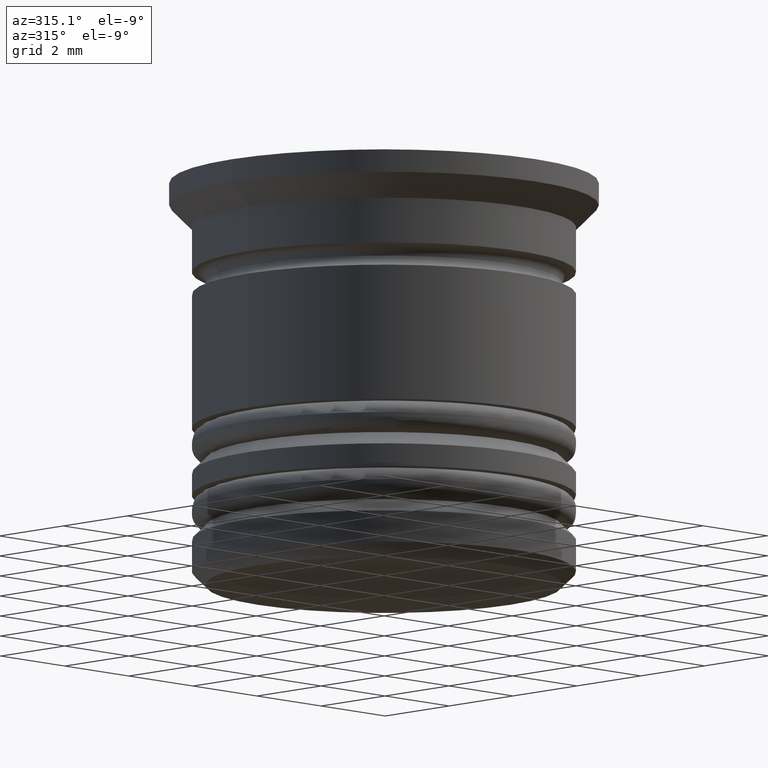
[diagram: clean part render]
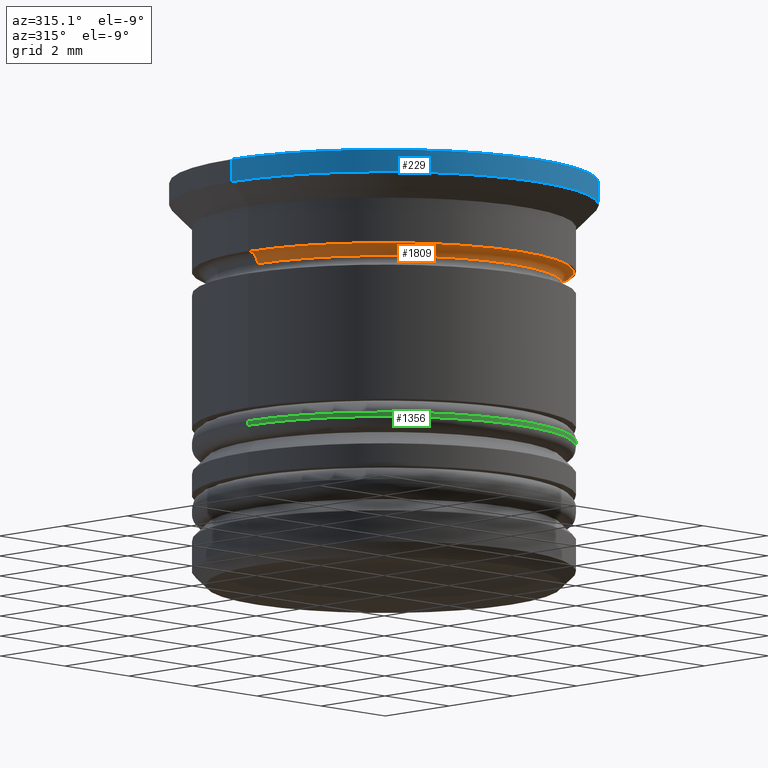
[diagram: same view with three faces highlighted in distinct colors, each labeled with its STEP entity id]
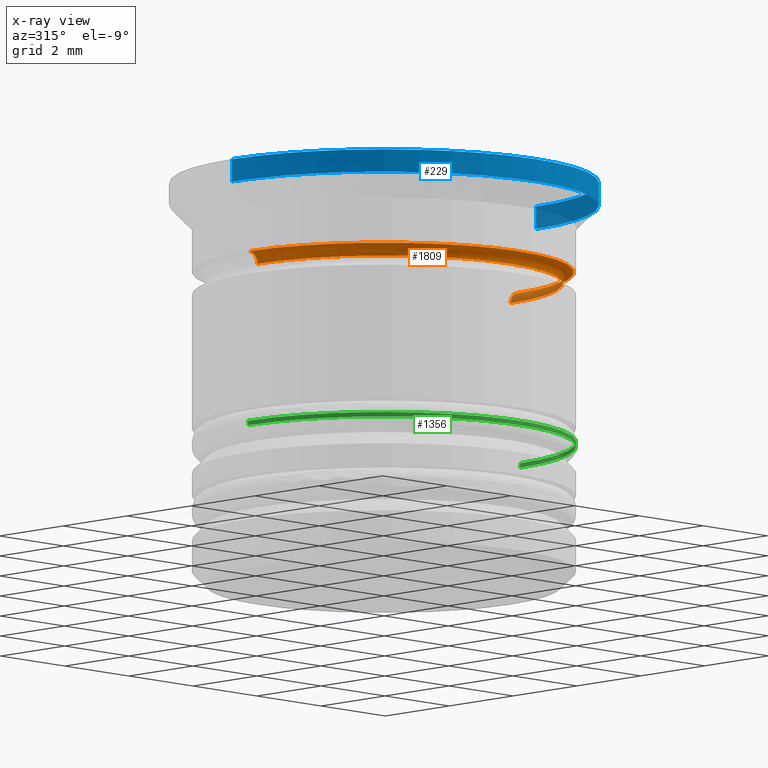
[diagram: x-ray of the same camera — body ghosted, the three highlighted faces saturated]
A machine part, auxiliary view with three faces highlighted in distinct colors.
The next image is the same camera in x-ray (body ghosted, the three faces saturated) — at least one of them is partly hidden behind the body in this view.
Their STEP definitions:

[orange] entity #1809 — the highlighted toroidal blend (fillet) surface has major radius 4.2 mm and minor (blend) radius 0.25 mm.
#16 = EDGE_CURVE ( 'NONE', #1343, #835, #308, .T. ) ;
#79 = CARTESIAN_POINT ( 'NONE',  ( 0.000000000000000000, 0.000000000000000000, -2.250000000000000000 ) ) ;
#136 = CARTESIAN_POINT ( 'NONE',  ( 4.200000000000000178, 0.000000000000000000, -2.000000000000000444 ) ) ;
#142 = DIRECTION ( 'NONE',  ( 1.000000000000000000, 0.000000000000000000, 0.000000000000000000 ) ) ;
#157 = CARTESIAN_POINT ( 'NONE',  ( -4.200000000000000178, 5.143516556418882928E-16, -2.250000000000000000 ) ) ;
#308 = CIRCLE ( 'NONE', #1465, 3.950000000000000178 ) ;
#401 = CARTESIAN_POINT ( 'NONE',  ( -3.950000000000000178, 4.837354856632045057E-16, -2.250000000000000000 ) ) ;
#415 = AXIS2_PLACEMENT_3D ( 'NONE', #1223, #1364, #142 ) ;
#516 = ORIENTED_EDGE ( 'NONE', *, *, #16, .T. ) ;
#555 = VERTEX_POINT ( 'NONE', #1448 ) ;
#640 = EDGE_LOOP ( 'NONE', ( #1789, #516, #1071, #1949 ) ) ;
#719 = CIRCLE ( 'NONE', #1571, 4.200000000000000178 ) ;
#723 = DIRECTION ( 'NONE',  ( 0.000000000000000000, 0.000000000000000000, -1.000000000000000000 ) ) ;
#734 = DIRECTION ( 'NONE',  ( -0.000000000000000000, -0.000000000000000000, 1.000000000000000000 ) ) ;
#774 = VERTEX_POINT ( 'NONE', #136 ) ;
#786 = DIRECTION ( 'NONE',  ( 1.224646799147353207E-16, 1.000000000000000000, 0.000000000000000000 ) ) ;
#835 = VERTEX_POINT ( 'NONE', #1370 ) ;
#879 = DIRECTION ( 'NONE',  ( 1.000000000000000000, 0.000000000000000000, 0.000000000000000000 ) ) ;
#906 = DIRECTION ( 'NONE',  ( 1.000000000000000000, 0.000000000000000000, 0.000000000000000000 ) ) ;
#913 = CIRCLE ( 'NONE', #1500, 0.2499999999999993616 ) ;
#972 = DIRECTION ( 'NONE',  ( -1.000000000000000000, 1.224646799147353700E-16, 0.000000000000000000 ) ) ;
#1071 = ORIENTED_EDGE ( 'NONE', *, *, #1288, .F. ) ;
#1212 = DIRECTION ( 'NONE',  ( -0.000000000000000000, -0.000000000000000000, 1.000000000000000000 ) ) ;
#1223 = CARTESIAN_POINT ( 'NONE',  ( 0.000000000000000000, 0.000000000000000000, -2.250000000000000000 ) ) ;
#1232 = FACE_OUTER_BOUND ( 'NONE', #640, .T. ) ;
#1288 = EDGE_CURVE ( 'NONE', #774, #835, #1305, .T. ) ;
#1305 = CIRCLE ( 'NONE', #1966, 0.2499999999999993616 ) ;
#1308 = TOROIDAL_SURFACE ( 'NONE', #415, 4.200000000000000178, 0.2499999999999993616 ) ;
#1343 = VERTEX_POINT ( 'NONE', #401 ) ;
#1364 = DIRECTION ( 'NONE',  ( -0.000000000000000000, -0.000000000000000000, 1.000000000000000000 ) ) ;
#1368 = EDGE_CURVE ( 'NONE', #555, #774, #719, .T. ) ;
#1370 = CARTESIAN_POINT ( 'NONE',  ( 3.950000000000000178, 0.000000000000000000, -2.250000000000000000 ) ) ;
#1448 = CARTESIAN_POINT ( 'NONE',  ( -4.200000000000000178, 5.143516556418882928E-16, -2.000000000000000444 ) ) ;
#1465 = AXIS2_PLACEMENT_3D ( 'NONE', #79, #734, #879 ) ;
#1500 = AXIS2_PLACEMENT_3D ( 'NONE', #157, #786, #972 ) ;
#1571 = AXIS2_PLACEMENT_3D ( 'NONE', #1996, #1212, #906 ) ;
#1677 = CARTESIAN_POINT ( 'NONE',  ( 4.200000000000000178, 0.000000000000000000, -2.250000000000000000 ) ) ;
#1789 = ORIENTED_EDGE ( 'NONE', *, *, #1957, .T. ) ;
#1809 = ADVANCED_FACE ( 'NONE', ( #1232 ), #1308, .F. ) ;
#1949 = ORIENTED_EDGE ( 'NONE', *, *, #1368, .F. ) ;
#1957 = EDGE_CURVE ( 'NONE', #555, #1343, #913, .T. ) ;
#1966 = AXIS2_PLACEMENT_3D ( 'NONE', #1677, #1984, #723 ) ;
#1984 = DIRECTION ( 'NONE',  ( 0.000000000000000000, -1.000000000000000000, 0.000000000000000000 ) ) ;
#1996 = CARTESIAN_POINT ( 'NONE',  ( 0.000000000000000000, 0.000000000000000000, -2.000000000000000444 ) ) ;

[blue] entity #229 — the highlighted cylindrical surface (partial cylindrical patch) has radius 4.75 mm, axis along (-0, -0, 1).
#69 = LINE ( 'NONE', #391, #980 ) ;
#152 = CARTESIAN_POINT ( 'NONE',  ( 0.000000000000000000, 0.000000000000000000, 0.000000000000000000 ) ) ;
#187 = AXIS2_PLACEMENT_3D ( 'NONE', #1997, #1503, #875 ) ;
#229 = ADVANCED_FACE ( 'NONE', ( #513 ), #1342, .T. ) ;
#247 = VECTOR ( 'NONE', #1564, 1000.000000000000000 ) ;
#300 = ORIENTED_EDGE ( 'NONE', *, *, #634, .F. ) ;
#340 = VERTEX_POINT ( 'NONE', #1374 ) ;
#391 = CARTESIAN_POINT ( 'NONE',  ( -4.750000000000000000, 5.817072295949927426E-16, 0.000000000000000000 ) ) ;
#396 = EDGE_CURVE ( 'NONE', #523, #1285, #409, .T. ) ;
#409 = CIRCLE ( 'NONE', #1931, 4.750000000000000000 ) ;
#465 = DIRECTION ( 'NONE',  ( 1.000000000000000000, 0.000000000000000000, 0.000000000000000000 ) ) ;
#513 = FACE_OUTER_BOUND ( 'NONE', #1746, .T. ) ;
#523 = VERTEX_POINT ( 'NONE', #1151 ) ;
#564 = EDGE_CURVE ( 'NONE', #340, #655, #1328, .T. ) ;
#634 = EDGE_CURVE ( 'NONE', #340, #523, #69, .T. ) ;
#655 = VERTEX_POINT ( 'NONE', #1982 ) ;
#721 = DIRECTION ( 'NONE',  ( -0.000000000000000000, -0.000000000000000000, 1.000000000000000000 ) ) ;
#742 = ORIENTED_EDGE ( 'NONE', *, *, #396, .F. ) ;
#794 = LINE ( 'NONE', #1417, #247 ) ;
#875 = DIRECTION ( 'NONE',  ( 1.000000000000000000, 0.000000000000000000, 0.000000000000000000 ) ) ;
#882 = AXIS2_PLACEMENT_3D ( 'NONE', #1130, #1767, #981 ) ;
#980 = VECTOR ( 'NONE', #721, 1000.000000000000000 ) ;
#981 = DIRECTION ( 'NONE',  ( -1.000000000000000000, 0.000000000000000000, 0.000000000000000000 ) ) ;
#997 = ORIENTED_EDGE ( 'NONE', *, *, #564, .T. ) ;
#1130 = CARTESIAN_POINT ( 'NONE',  ( 0.000000000000000000, 0.000000000000000000, -0.4999999999999985012 ) ) ;
#1151 = CARTESIAN_POINT ( 'NONE',  ( -4.750000000000000000, 5.817072295949927426E-16, 0.000000000000000000 ) ) ;
#1205 = ORIENTED_EDGE ( 'NONE', *, *, #2031, .T. ) ;
#1285 = VERTEX_POINT ( 'NONE', #1546 ) ;
#1328 = CIRCLE ( 'NONE', #882, 4.750000000000000000 ) ;
#1342 = CYLINDRICAL_SURFACE ( 'NONE', #187, 4.750000000000000000 ) ;
#1374 = CARTESIAN_POINT ( 'NONE',  ( -4.750000000000000000, 5.817072295949927426E-16, -0.4999999999999985012 ) ) ;
#1417 = CARTESIAN_POINT ( 'NONE',  ( 4.750000000000000000, 0.000000000000000000, 0.000000000000000000 ) ) ;
#1503 = DIRECTION ( 'NONE',  ( -0.000000000000000000, -0.000000000000000000, 1.000000000000000000 ) ) ;
#1546 = CARTESIAN_POINT ( 'NONE',  ( 4.750000000000000000, 0.000000000000000000, 0.000000000000000000 ) ) ;
#1564 = DIRECTION ( 'NONE',  ( -0.000000000000000000, -0.000000000000000000, 1.000000000000000000 ) ) ;
#1746 = EDGE_LOOP ( 'NONE', ( #300, #997, #1205, #742 ) ) ;
#1767 = DIRECTION ( 'NONE',  ( -0.000000000000000000, -0.000000000000000000, 1.000000000000000000 ) ) ;
#1887 = DIRECTION ( 'NONE',  ( -0.000000000000000000, -0.000000000000000000, 1.000000000000000000 ) ) ;
#1931 = AXIS2_PLACEMENT_3D ( 'NONE', #152, #1887, #465 ) ;
#1982 = CARTESIAN_POINT ( 'NONE',  ( 4.750000000000000000, 0.000000000000000000, -0.4999999999999985012 ) ) ;
#1997 = CARTESIAN_POINT ( 'NONE',  ( 0.000000000000000000, 0.000000000000000000, 0.000000000000000000 ) ) ;
#2031 = EDGE_CURVE ( 'NONE', #655, #1285, #794, .T. ) ;

[green] entity #1356 — the highlighted cylindrical surface (partial cylindrical patch) has radius 4.25 mm, axis along (-0, -0, 1).
#49 = LINE ( 'NONE', #1626, #683 ) ;
#57 = AXIS2_PLACEMENT_3D ( 'NONE', #1545, #1270, #1381 ) ;
#235 = DIRECTION ( 'NONE',  ( 0.000000000000000000, 0.000000000000000000, -1.000000000000000000 ) ) ;
#262 = FACE_OUTER_BOUND ( 'NONE', #1846, .T. ) ;
#266 = CARTESIAN_POINT ( 'NONE',  ( 0.000000000000000000, 0.000000000000000000, -5.799999999999999822 ) ) ;
#272 = DIRECTION ( 'NONE',  ( 1.000000000000000000, 0.000000000000000000, 0.000000000000000000 ) ) ;
#284 = CARTESIAN_POINT ( 'NONE',  ( -4.250000000000000000, 5.204748896376250699E-16, -5.900000000000003908 ) ) ;
#317 = AXIS2_PLACEMENT_3D ( 'NONE', #266, #235, #1336 ) ;
#322 = VERTEX_POINT ( 'NONE', #2025 ) ;
#477 = DIRECTION ( 'NONE',  ( -0.000000000000000000, -0.000000000000000000, 1.000000000000000000 ) ) ;
#520 = ORIENTED_EDGE ( 'NONE', *, *, #916, .T. ) ;
#534 = EDGE_CURVE ( 'NONE', #1263, #1752, #49, .T. ) ;
#575 = CIRCLE ( 'NONE', #317, 4.250000000000000000 ) ;
#683 = VECTOR ( 'NONE', #477, 1000.000000000000000 ) ;
#743 = CARTESIAN_POINT ( 'NONE',  ( 0.000000000000000000, 0.000000000000000000, -18.22081528017131191 ) ) ;
#790 = CARTESIAN_POINT ( 'NONE',  ( 4.250000000000000000, 0.000000000000000000, -5.799999999999999822 ) ) ;
#791 = ORIENTED_EDGE ( 'NONE', *, *, #1037, .T. ) ;
#914 = VECTOR ( 'NONE', #1271, 1000.000000000000000 ) ;
#916 = EDGE_CURVE ( 'NONE', #322, #937, #1584, .T. ) ;
#937 = VERTEX_POINT ( 'NONE', #790 ) ;
#1037 = EDGE_CURVE ( 'NONE', #1263, #322, #1776, .T. ) ;
#1125 = EDGE_CURVE ( 'NONE', #937, #1752, #575, .T. ) ;
#1153 = ORIENTED_EDGE ( 'NONE', *, *, #1125, .T. ) ;
#1221 = CYLINDRICAL_SURFACE ( 'NONE', #1938, 4.250000000000000000 ) ;
#1263 = VERTEX_POINT ( 'NONE', #284 ) ;
#1270 = DIRECTION ( 'NONE',  ( 0.000000000000000000, 0.000000000000000000, 1.000000000000000000 ) ) ;
#1271 = DIRECTION ( 'NONE',  ( -0.000000000000000000, -0.000000000000000000, 1.000000000000000000 ) ) ;
#1336 = DIRECTION ( 'NONE',  ( -1.000000000000000000, 0.000000000000000000, 0.000000000000000000 ) ) ;
#1356 = ADVANCED_FACE ( 'NONE', ( #262 ), #1221, .T. ) ;
#1359 = DIRECTION ( 'NONE',  ( -0.000000000000000000, -0.000000000000000000, 1.000000000000000000 ) ) ;
#1375 = CARTESIAN_POINT ( 'NONE',  ( -4.250000000000000000, 5.204748896376250699E-16, -5.799999999999999822 ) ) ;
#1381 = DIRECTION ( 'NONE',  ( 1.000000000000000000, 0.000000000000000000, 0.000000000000000000 ) ) ;
#1413 = CARTESIAN_POINT ( 'NONE',  ( 4.250000000000000000, 0.000000000000000000, -18.22081528017131191 ) ) ;
#1545 = CARTESIAN_POINT ( 'NONE',  ( 0.000000000000000000, 0.000000000000000000, -5.900000000000003908 ) ) ;
#1584 = LINE ( 'NONE', #1413, #914 ) ;
#1596 = ORIENTED_EDGE ( 'NONE', *, *, #534, .F. ) ;
#1626 = CARTESIAN_POINT ( 'NONE',  ( -4.250000000000000000, 5.204748896376250699E-16, -18.22081528017131191 ) ) ;
#1752 = VERTEX_POINT ( 'NONE', #1375 ) ;
#1776 = CIRCLE ( 'NONE', #57, 4.250000000000000000 ) ;
#1846 = EDGE_LOOP ( 'NONE', ( #1596, #791, #520, #1153 ) ) ;
#1938 = AXIS2_PLACEMENT_3D ( 'NONE', #743, #1359, #272 ) ;
#2025 = CARTESIAN_POINT ( 'NONE',  ( 4.250000000000000000, 0.000000000000000000, -5.900000000000003908 ) ) ;